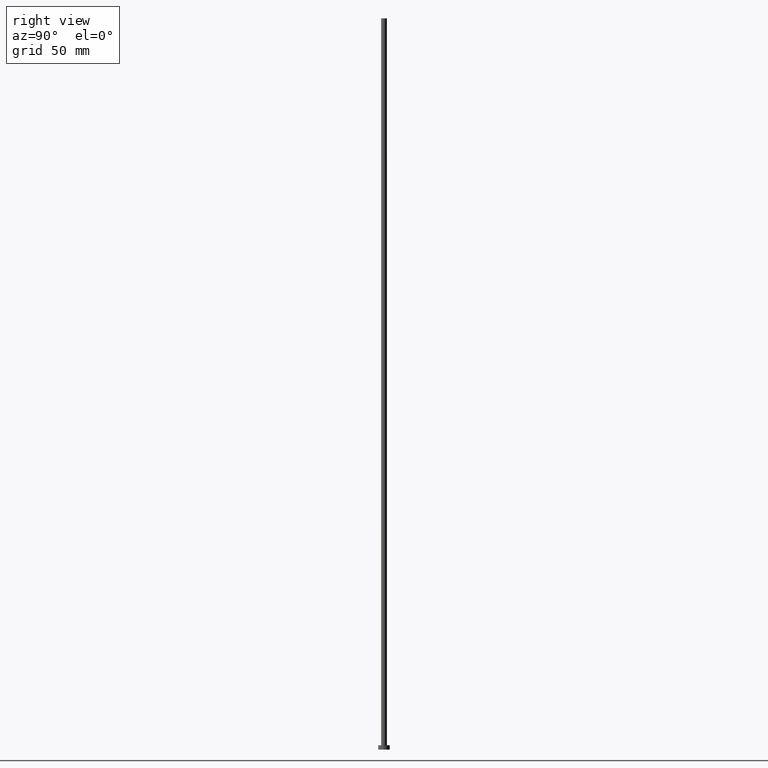
[diagram: clean part render]
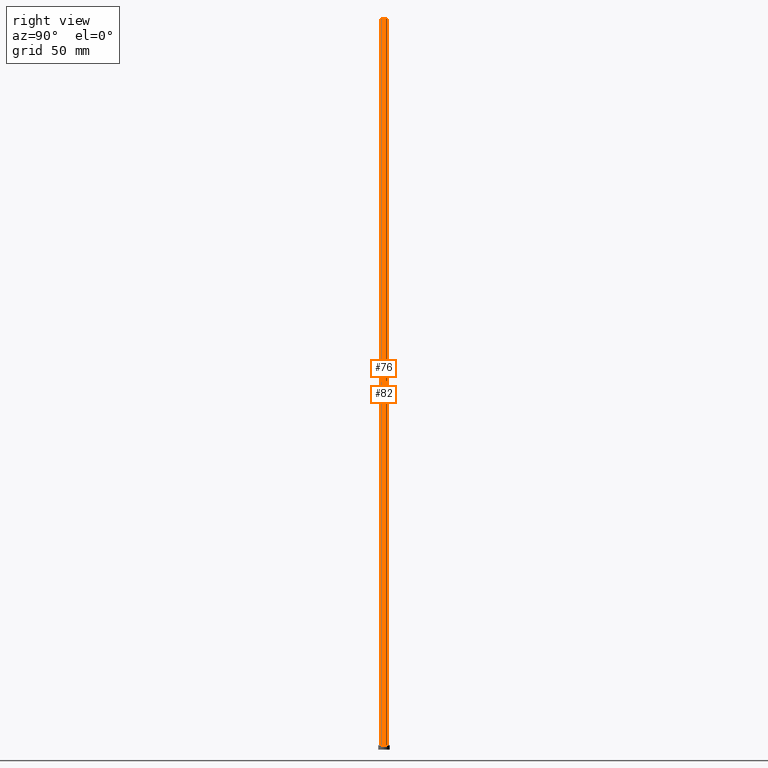
[diagram: same view with one multi-face feature highlighted, each face labeled with its STEP entity id]
A machine part, right view. The highlighted faces form ONE feature: a constant-radius fillet chain: 2 tangent blend faces with common blend radius 2 mm. The faces share edges in the B-rep.
Their STEP definitions:
[1] entity #76 (Cylinder):
#11 = DIRECTION ( 'NONE',  ( -0.000000000000000000, -0.000000000000000000, -1.000000000000000000 ) ) ;
#18 = EDGE_CURVE ( 'NONE', #191, #151, #28, .T. ) ;
#28 = LINE ( 'NONE', #139, #219 ) ;
#35 = CARTESIAN_POINT ( 'NONE',  ( 2.000000000000000000, 2.449293598294705921E-16, 3.000000000000000000 ) ) ;
#41 = EDGE_CURVE ( 'NONE', #105, #235, #85, .T. ) ;
#48 = CYLINDRICAL_SURFACE ( 'NONE', #118, 2.000000000000000000 ) ;
#52 = EDGE_LOOP ( 'NONE', ( #56, #170, #123, #149 ) ) ;
#55 = CARTESIAN_POINT ( 'NONE',  ( 0.000000000000000000, 0.000000000000000000, 3.000000000000000000 ) ) ;
#56 = ORIENTED_EDGE ( 'NONE', *, *, #18, .F. ) ;
#63 = AXIS2_PLACEMENT_3D ( 'NONE', #55, #172, #231 ) ;
#75 = CIRCLE ( 'NONE', #109, 2.000000000000000000 ) ;
#76 = ADVANCED_FACE ( 'NONE', ( #106 ), #48, .T. ) ;
#85 = LINE ( 'NONE', #183, #178 ) ;
#98 = EDGE_CURVE ( 'NONE', #105, #191, #75, .T. ) ;
#103 = DIRECTION ( 'NONE',  ( -0.000000000000000000, -0.000000000000000000, -1.000000000000000000 ) ) ;
#105 = VERTEX_POINT ( 'NONE', #251 ) ;
#106 = FACE_OUTER_BOUND ( 'NONE', #52, .T. ) ;
#109 = AXIS2_PLACEMENT_3D ( 'NONE', #180, #110, #122 ) ;
#110 = DIRECTION ( 'NONE',  ( 0.000000000000000000, 0.000000000000000000, 1.000000000000000000 ) ) ;
#116 = CARTESIAN_POINT ( 'NONE',  ( -2.000000000000000000, 0.000000000000000000, 3.000000000000000000 ) ) ;
#118 = AXIS2_PLACEMENT_3D ( 'NONE', #124, #11, #249 ) ;
#122 = DIRECTION ( 'NONE',  ( 1.000000000000000000, 0.000000000000000000, 0.000000000000000000 ) ) ;
#123 = ORIENTED_EDGE ( 'NONE', *, *, #41, .T. ) ;
#124 = CARTESIAN_POINT ( 'NONE',  ( 0.000000000000000000, 0.000000000000000000, 500.0000000000000000 ) ) ;
#139 = CARTESIAN_POINT ( 'NONE',  ( 2.000000000000000000, 2.449293598294705921E-16, 500.0000000000000000 ) ) ;
#149 = ORIENTED_EDGE ( 'NONE', *, *, #199, .T. ) ;
#151 = VERTEX_POINT ( 'NONE', #35 ) ;
#170 = ORIENTED_EDGE ( 'NONE', *, *, #98, .F. ) ;
#172 = DIRECTION ( 'NONE',  ( 0.000000000000000000, 0.000000000000000000, 1.000000000000000000 ) ) ;
#178 = VECTOR ( 'NONE', #232, 1000.000000000000000 ) ;
#180 = CARTESIAN_POINT ( 'NONE',  ( 0.000000000000000000, 0.000000000000000000, 500.0000000000000000 ) ) ;
#183 = CARTESIAN_POINT ( 'NONE',  ( -2.000000000000000000, 0.000000000000000000, 500.0000000000000000 ) ) ;
#191 = VERTEX_POINT ( 'NONE', #233 ) ;
#199 = EDGE_CURVE ( 'NONE', #235, #151, #244, .T. ) ;
#219 = VECTOR ( 'NONE', #103, 1000.000000000000000 ) ;
#231 = DIRECTION ( 'NONE',  ( 1.000000000000000000, 0.000000000000000000, 0.000000000000000000 ) ) ;
#232 = DIRECTION ( 'NONE',  ( -0.000000000000000000, -0.000000000000000000, -1.000000000000000000 ) ) ;
#233 = CARTESIAN_POINT ( 'NONE',  ( 2.000000000000000000, 2.449293598294705921E-16, 500.0000000000000000 ) ) ;
#235 = VERTEX_POINT ( 'NONE', #116 ) ;
#244 = CIRCLE ( 'NONE', #63, 2.000000000000000000 ) ;
#249 = DIRECTION ( 'NONE',  ( -1.000000000000000000, 0.000000000000000000, 0.000000000000000000 ) ) ;
#251 = CARTESIAN_POINT ( 'NONE',  ( -2.000000000000000000, 0.000000000000000000, 500.0000000000000000 ) ) ;
[2] entity #82 (Cylinder):
#4 = CARTESIAN_POINT ( 'NONE',  ( 0.000000000000000000, 0.000000000000000000, 500.0000000000000000 ) ) ;
#10 = DIRECTION ( 'NONE',  ( 1.000000000000000000, 0.000000000000000000, 0.000000000000000000 ) ) ;
#18 = EDGE_CURVE ( 'NONE', #191, #151, #28, .T. ) ;
#28 = LINE ( 'NONE', #139, #219 ) ;
#31 = EDGE_CURVE ( 'NONE', #151, #235, #99, .T. ) ;
#33 = AXIS2_PLACEMENT_3D ( 'NONE', #182, #146, #10 ) ;
#35 = CARTESIAN_POINT ( 'NONE',  ( 2.000000000000000000, 2.449293598294705921E-16, 3.000000000000000000 ) ) ;
#41 = EDGE_CURVE ( 'NONE', #105, #235, #85, .T. ) ;
#68 = DIRECTION ( 'NONE',  ( -1.000000000000000000, 0.000000000000000000, 0.000000000000000000 ) ) ;
#77 = AXIS2_PLACEMENT_3D ( 'NONE', #4, #79, #245 ) ;
#79 = DIRECTION ( 'NONE',  ( 0.000000000000000000, 0.000000000000000000, 1.000000000000000000 ) ) ;
#82 = ADVANCED_FACE ( 'NONE', ( #206 ), #87, .T. ) ;
#85 = LINE ( 'NONE', #183, #178 ) ;
#87 = CYLINDRICAL_SURFACE ( 'NONE', #223, 2.000000000000000000 ) ;
#99 = CIRCLE ( 'NONE', #33, 2.000000000000000000 ) ;
#103 = DIRECTION ( 'NONE',  ( -0.000000000000000000, -0.000000000000000000, -1.000000000000000000 ) ) ;
#105 = VERTEX_POINT ( 'NONE', #251 ) ;
#111 = ORIENTED_EDGE ( 'NONE', *, *, #31, .T. ) ;
#116 = CARTESIAN_POINT ( 'NONE',  ( -2.000000000000000000, 0.000000000000000000, 3.000000000000000000 ) ) ;
#129 = EDGE_LOOP ( 'NONE', ( #230, #207, #111, #159 ) ) ;
#139 = CARTESIAN_POINT ( 'NONE',  ( 2.000000000000000000, 2.449293598294705921E-16, 500.0000000000000000 ) ) ;
#146 = DIRECTION ( 'NONE',  ( 0.000000000000000000, 0.000000000000000000, 1.000000000000000000 ) ) ;
#151 = VERTEX_POINT ( 'NONE', #35 ) ;
#159 = ORIENTED_EDGE ( 'NONE', *, *, #41, .F. ) ;
#165 = CARTESIAN_POINT ( 'NONE',  ( 0.000000000000000000, 0.000000000000000000, 500.0000000000000000 ) ) ;
#178 = VECTOR ( 'NONE', #232, 1000.000000000000000 ) ;
#182 = CARTESIAN_POINT ( 'NONE',  ( 0.000000000000000000, 0.000000000000000000, 3.000000000000000000 ) ) ;
#183 = CARTESIAN_POINT ( 'NONE',  ( -2.000000000000000000, 0.000000000000000000, 500.0000000000000000 ) ) ;
#188 = CIRCLE ( 'NONE', #77, 2.000000000000000000 ) ;
#191 = VERTEX_POINT ( 'NONE', #233 ) ;
#206 = FACE_OUTER_BOUND ( 'NONE', #129, .T. ) ;
#207 = ORIENTED_EDGE ( 'NONE', *, *, #18, .T. ) ;
#219 = VECTOR ( 'NONE', #103, 1000.000000000000000 ) ;
#223 = AXIS2_PLACEMENT_3D ( 'NONE', #165, #247, #68 ) ;
#230 = ORIENTED_EDGE ( 'NONE', *, *, #253, .F. ) ;
#232 = DIRECTION ( 'NONE',  ( -0.000000000000000000, -0.000000000000000000, -1.000000000000000000 ) ) ;
#233 = CARTESIAN_POINT ( 'NONE',  ( 2.000000000000000000, 2.449293598294705921E-16, 500.0000000000000000 ) ) ;
#235 = VERTEX_POINT ( 'NONE', #116 ) ;
#245 = DIRECTION ( 'NONE',  ( 1.000000000000000000, 0.000000000000000000, 0.000000000000000000 ) ) ;
#247 = DIRECTION ( 'NONE',  ( -0.000000000000000000, -0.000000000000000000, -1.000000000000000000 ) ) ;
#251 = CARTESIAN_POINT ( 'NONE',  ( -2.000000000000000000, 0.000000000000000000, 500.0000000000000000 ) ) ;
#253 = EDGE_CURVE ( 'NONE', #191, #105, #188, .T. ) ;